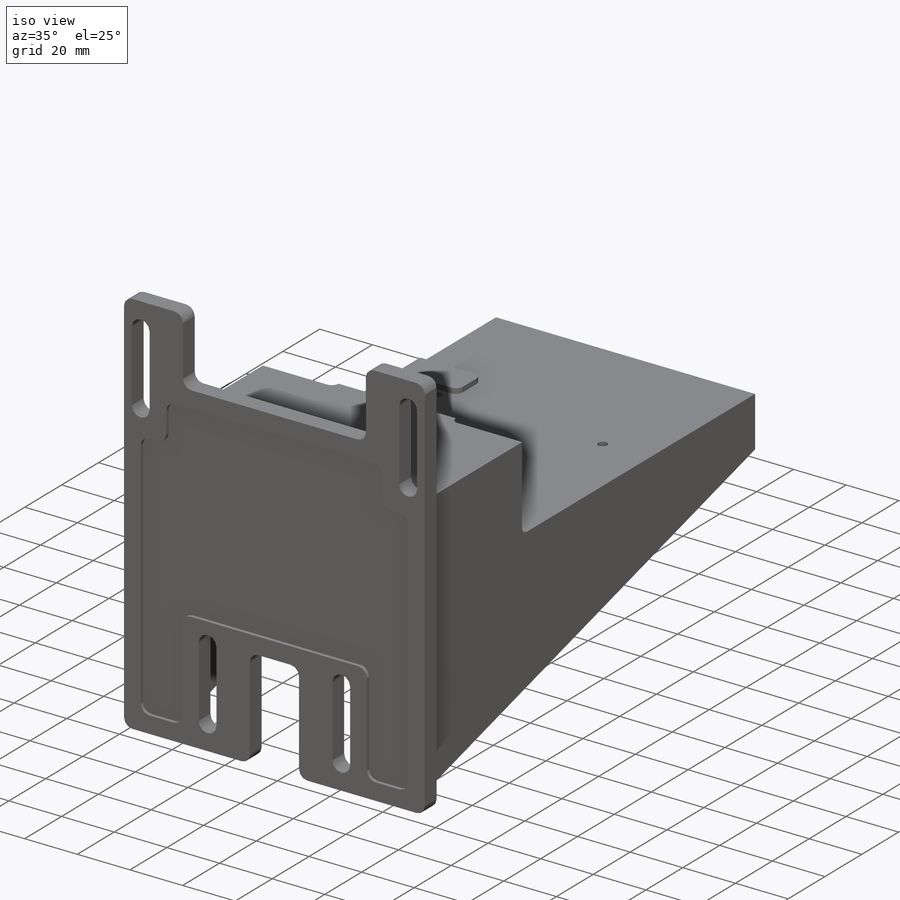
[diagram: iso view]
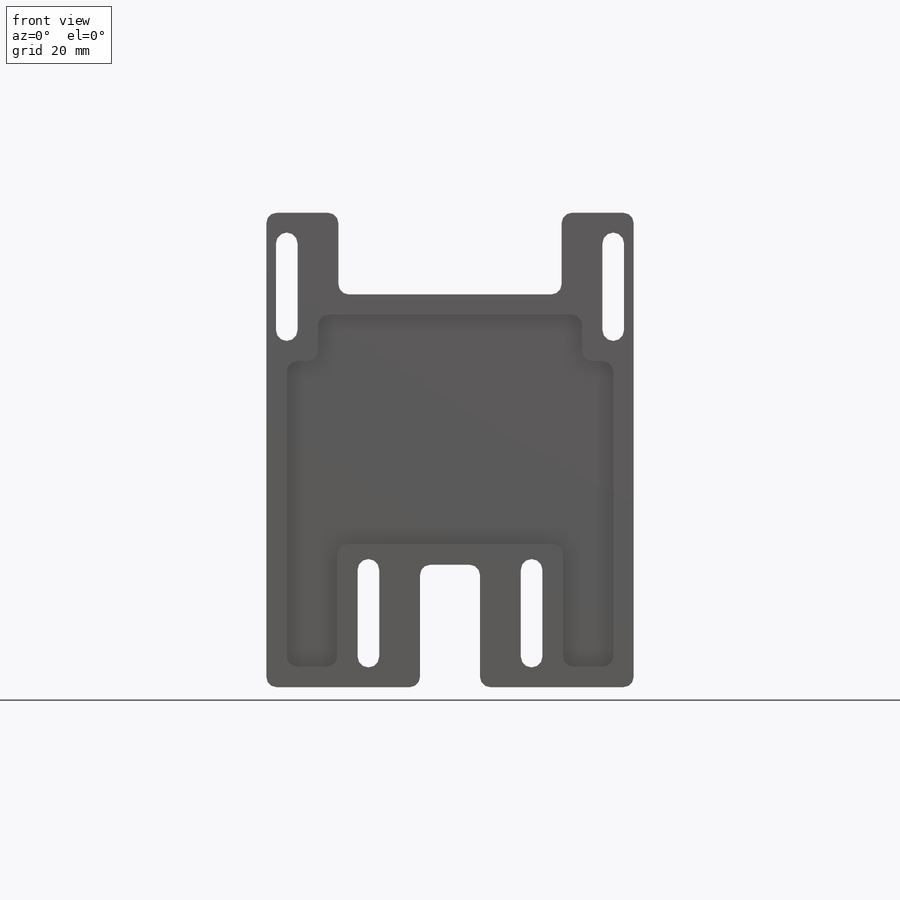
[diagram: front view]
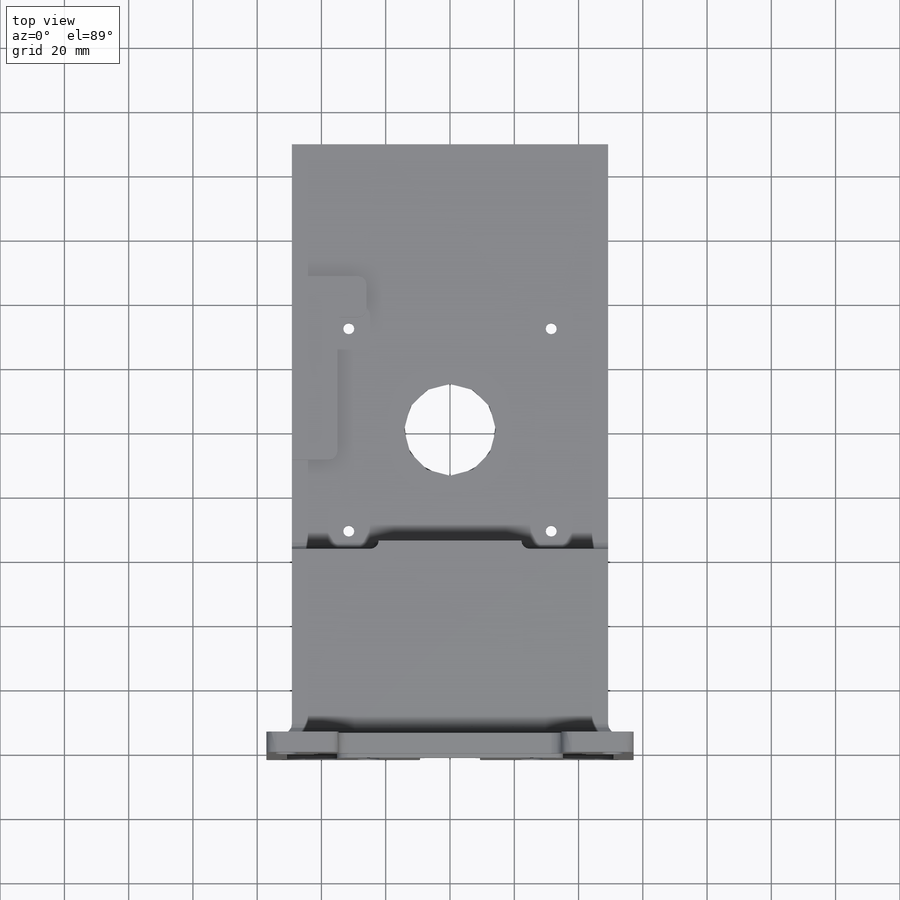
[diagram: top view]
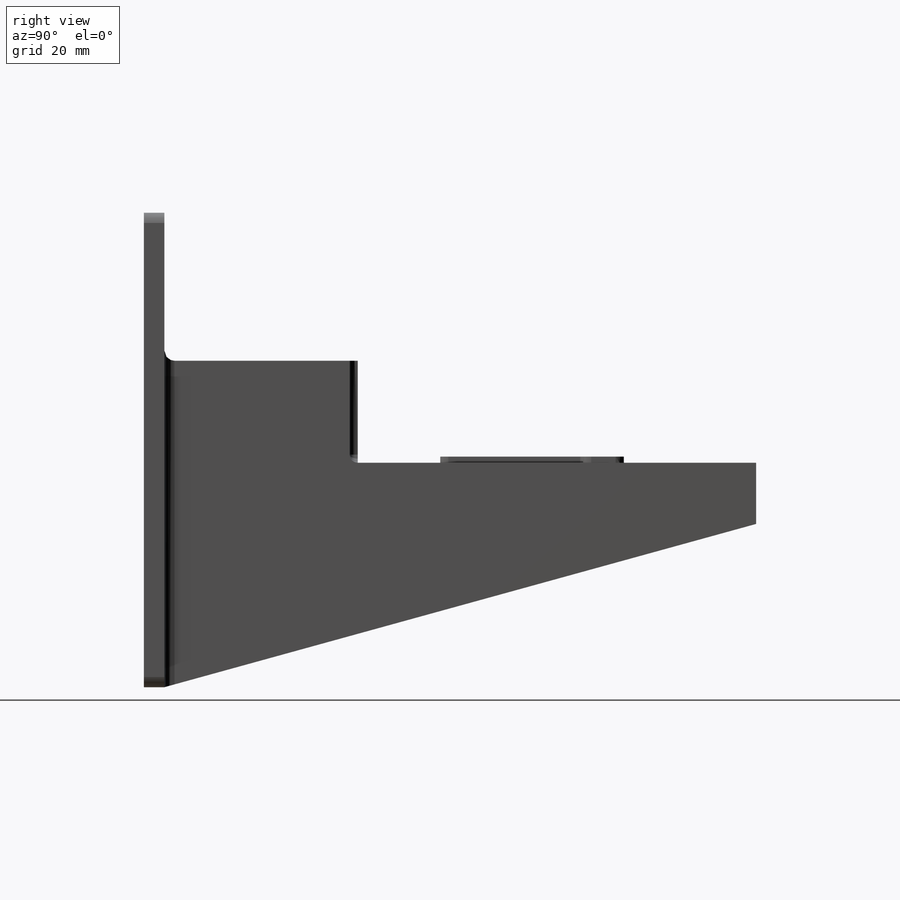
[diagram: right view]
SOLIDWORKS PART (.sldprt)
format: sldprt  version: not decoded by parser v0  size: 753,664 bytes
history: native  units: mm
features: sketch x14, fillet x7, extrude x6, cut_extrude x6, pattern_linear x2, material x1, hole x1, plane x1, chamfer x1 + 1 further entry (+12 scaffold rows collapsed)
feature tree (52):
  scaffold x12  (default folders/planes/origin — collapsed)
  material  "6061 Alloy"
  "Origin"  ID=-1
  sketch  "Sketch1"  dims[D5=28.575mm D1=114.3mm D2=190.5mm D3=57.15mm D4=88.9mm]
  extrude  "Extrude1"  Depth=6.35mm
  sketch  "Sketch2"  dims[D1=64.008mm]
  extrude  "Extrude2"  Depth=77.7875mm
  sketch  "Sketch3"  dims[D1=46.0375mm D2=57.658mm]
  cut_extrude  "Extrude3"  [1 undecoded]
  hole  "#8-32 Tapped Hole1"  Diameter=3.4544mm Depth=6.35105mm
  sketch  "3DSketch1"  dims[D1=31.496mm D2=31.496mm]
  sketch  "Sketch4"  dims[hole-wizard template sketch: 60 standard entries collapsed; hole parameters kept: c18.Thru Tap Drill Depth=~6.35105mm]
  pattern_linear  "LPattern1"  Count1=2 Count2=2 Spacing1=62.992mm Spacing2=62.992mm
  sketch  "Sketch8"  dims[D1=12.7mm D2=12.7mm D3=19.05mm D4=19.05mm D5=2.54mm D6=2.54mm D7=2.54mm D8=22.225mm D9=44.45mm]
  extrude  "Extrude6"  [1 undecoded]
  plane  "Plane1"  Offset=42.8625mm
  sketch  "Sketch5"  dims[D1=63.5mm D2=6.35mm D3=12.7mm]
  extrude  "Extrude7"  Depth=6.35mm
  pattern_linear  "LPattern4"  Count1=2 Count2=1 Spacing1=92.075mm Spacing2=2.54mm
  sketch  "Sketch10"  dims[D1=6.35mm D2=6.35mm D3=6.35mm]
  extrude  "Extrude8"  [1 undecoded]
  sketch  "Sketch11"  dims[D1=7.9375mm D2=7.9375mm]
  cut_extrude  "Extrude9"  [1 undecoded]
  sketch  "Sketch12"  dims[c1.D5=3.3655mm c1.D6=3.3655mm c1.D1=19.05mm c1.D2=101.6mm c1.D3=26.9875mm c1.D4=26.9875mm c1.D7=9.525mm c1.D8=9.525mm c1.D9=38.1mm c2.D1=50.8mm]
  cut_extrude  "Extrude10"  [1 undecoded]
  sketch  "Sketch13"  dims[c1.D9=3.3655mm c1.D10=3.3655mm c1.D11=3.3655mm c1.D12=3.3655mm c1.D1=26.9875mm c1.D2=26.9875mm c1.D3=26.9875mm c1.D4=26.9875mm c1.D5=9.525mm c1.D6=9.525mm c1.D7=9.525mm c1.D8=9.525mm c1.D13=19.05mm c1.D14=19.05mm c1.D15=25.4mm c1.D16=25.4mm c2.D4=25.4mm c2.D5=50.8mm]
  cut_extrude  "Extrude11"  [1 undecoded]
  fillet  "Fillet1"  Radius=3.175mm
  fillet  "Fillet2"  Radius=2.54mm
  sketch  "Sketch17"  dims[D1=12.7mm D2=12.7mm D3=25.4mm D4=38.1mm D5=12.7mm D6=12.7mm]
  cut_extrude  "Extrude15"  [1 undecoded]
  fillet  "Fillet6"  Radius=3.175mm
  fillet  "Fillet7"  Radius=6.35mm
  chamfer  "Chamfer1"  Distance=3.175mm Angle=45deg
  sketch  "Sketch18"  dims[c1.D1=35.052mm c1.D2=35.052mm c1.D3=12.7mm c1.D4=~9.04875mm c2.D1=44.45mm c2.D5=35.052mm c2.D3=35.052mm c2.D4=12.7mm c3.D5=~9.04875mm]
  extrude  "Boss-Extrude1"  Depth=1.905mm
  fillet  "Fillet8"  Radius=0.9525mm
  fillet  "Fillet10"  Radius=2.54mm
  sketch  "Sketch19"  dims[D1=6.35mm D2=6.35mm D3=6.35mm D4=6.35mm D5=6.35mm D6=6.35mm D7=6.35mm D8=6.35mm D9=6.35mm D10=6.35mm D11=6.35mm D12=6.35mm]
  cut_extrude  "Cut-Extrude1"  Depth=1.27mm
  fillet  "Fillet11"  Radius=3.175mm
decode coverage: 30 of 37 modeling features carry decoded parameters; 1 rows unclassified (native names shown)
note: ~ marks probable driven/reference dimensions
note: 7 parameter values undecoded
summary: no parameter record found for 7 features
note: suppression state not decoded; provenance and decode notes live in map.json
